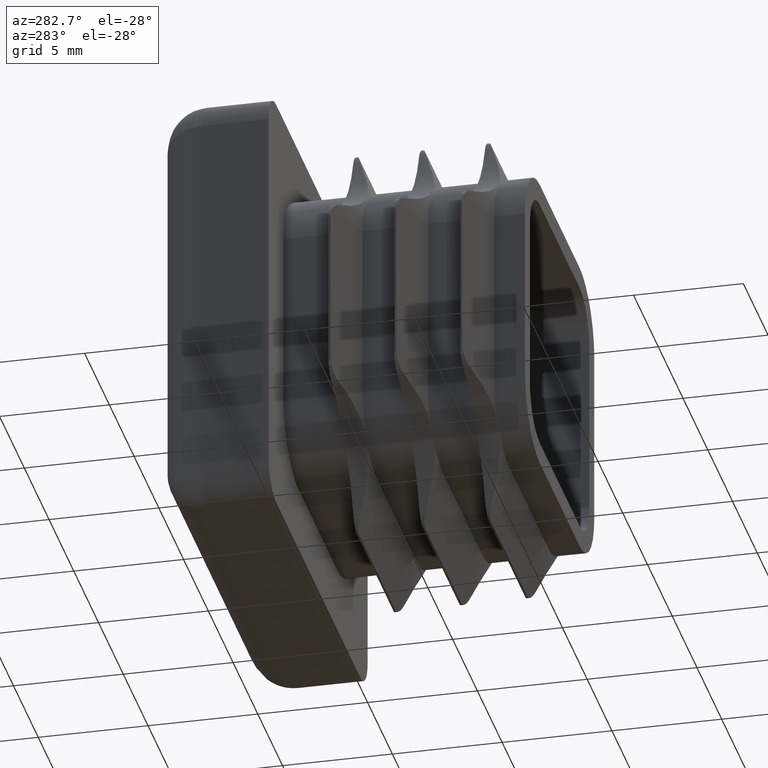
[diagram: clean part render]
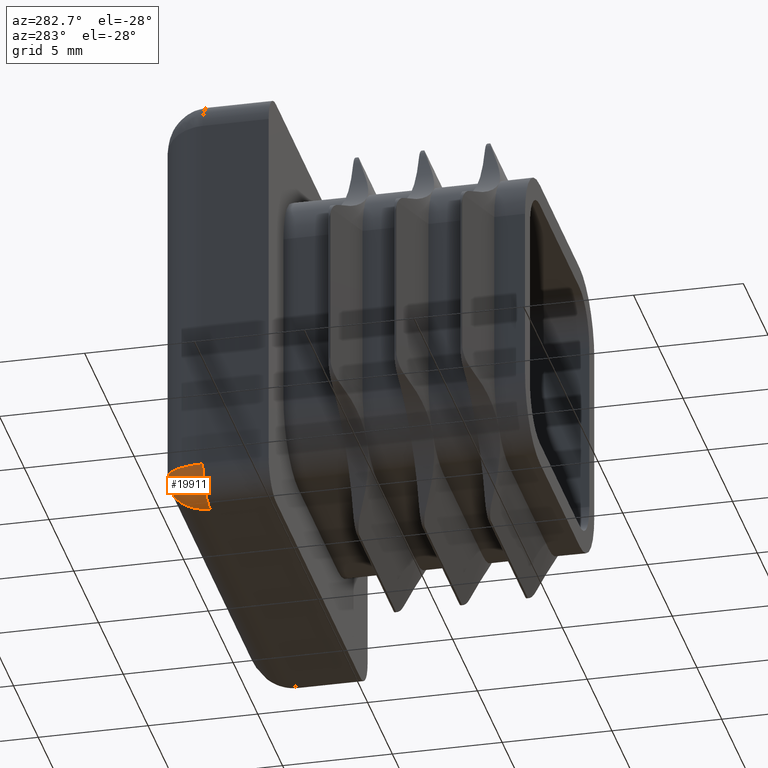
[diagram: same view with one face highlighted and labeled with its STEP entity id]
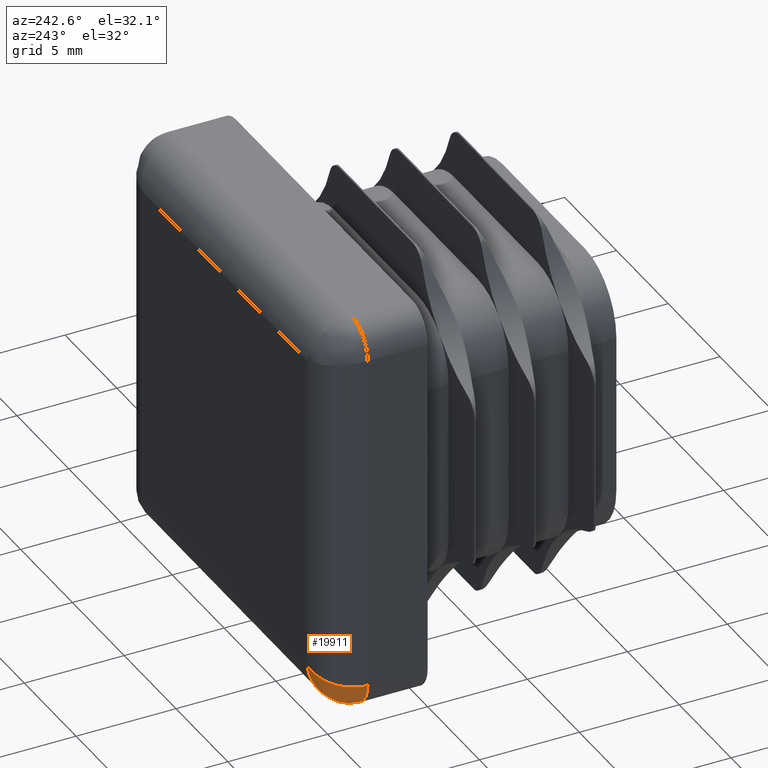
[diagram: same view with one face highlighted and labeled with its STEP entity id]
A machine part, auxiliary view. The second image highlights one B-rep face of the part: STEP entity #19911.
A second angle (auxiliary view) of the same face is appended — the face is thin or edge-on in the first view.
In plain terms, the highlighted face is a freeform B-spline surface patch.
Its self-contained STEP definition (entity closure, byte-faithful):
#66 = CARTESIAN_POINT ( 'NONE',  ( -9.999999999999994671, 3.000000000000000000, -8.499999999999989342 ) ) ;
#131 = CARTESIAN_POINT ( 'NONE',  ( -8.433915790249875144, 4.002301403747636321, -9.735663160999472154 ) ) ;
#367 = EDGE_CURVE ( 'NONE', #3658, #16613, #1541, .T. ) ;
#447 = VERTEX_POINT ( 'NONE', #17873 ) ;
#1358 = ORIENTED_EDGE ( 'NONE', *, *, #367, .F. ) ;
#1421 = CARTESIAN_POINT ( 'NONE',  ( -8.868498082558900819, 4.871239223148167596, -8.868498082558959439 ) ) ;
#1541 =( BOUNDED_CURVE ( )  B_SPLINE_CURVE ( 3, ( #14525, #14594, #4895, #17590 ),
 .UNSPECIFIED., .F., .F. ) 
 B_SPLINE_CURVE_WITH_KNOTS ( ( 4, 4 ),
 ( 0.000000000000000000, 1.570796326794896558 ),
 .UNSPECIFIED. ) 
 CURVE ( )  GEOMETRIC_REPRESENTATION_ITEM ( )  RATIONAL_B_SPLINE_CURVE ( ( 1.000000000000000000, 0.8047378541243649375, 0.8047378541243649375, 1.000000000000000000 ) ) 
 REPRESENTATION_ITEM ( '' )  );
#1686 = CARTESIAN_POINT ( 'NONE',  ( -8.397553822052662653, 4.219979528330772389, -9.590215288210686140 ) ) ;
#2963 = CARTESIAN_POINT ( 'NONE',  ( -7.999999999999994671, 5.000000000000000000, -7.999999999999989342 ) ) ;
#3126 = CARTESIAN_POINT ( 'NONE',  ( -8.499999999934567896, 3.130901116873741064, -9.999999999999989342 ) ) ;
#3658 = VERTEX_POINT ( 'NONE', #6484 ) ;
#3682 = CARTESIAN_POINT ( 'NONE',  ( -8.499999999999994671, 3.000000000000000000, -8.499999999999989342 ) ) ;
#4662 = CARTESIAN_POINT ( 'NONE',  ( -9.007237873748223933, 4.747572812742430592, -8.251809468437050654 ) ) ;
#4785 = CARTESIAN_POINT ( 'NONE',  ( -9.999999999999994671, 3.130901116873741064, -8.499999999934450656 ) ) ;
#4854 = CARTESIAN_POINT ( 'NONE',  ( -9.967381048192295978, 3.454858333943214621, -9.967381048192290649 ) ) ;
#4895 = CARTESIAN_POINT ( 'NONE',  ( -8.292893218813446765, 5.000000000000000888, -9.171572875253799495 ) ) ;
#4917 = CARTESIAN_POINT ( 'NONE',  ( -9.506773582446967907, 4.321653542299215722, -8.376693395611734871 ) ) ;
#5121 = CARTESIAN_POINT ( 'NONE',  ( -8.261846524179178530, 5.000000000000000000, -8.065461631044785307 ) ) ;
#5258 =( BOUNDED_SURFACE ( )  B_SPLINE_SURFACE ( 3, 2, ( 
 ( #66, #12729, #14226 ),
 ( #4785, #7813, #3126 ),
 ( #15801, #4854, #14286 ),
 ( #10988, #7937, #15951 ),
 ( #6497, #15883, #7872 ),
 ( #6424, #20551, #6366 ),
 ( #14347, #17478, #131 ),
 ( #7754, #11185, #1686 ),
 ( #4917, #9323, #20431 ),
 ( #10921, #1421, #14090 ),
 ( #4662, #15686, #6235 ),
 ( #17283, #12918, #16165 ),
 ( #5121, #5458, #6976 ),
 ( #9725, #19296, #11387 ) ),
 .UNSPECIFIED., .F., .F., .T. ) 
 B_SPLINE_SURFACE_WITH_KNOTS ( ( 4, 2, 2, 2, 2, 2, 4 ),
 ( 3, 3 ),
 ( 6.283185307179586232, 6.479534848028948524, 6.675884388878310816, 6.872233929727672219, 7.068583470577034511, 7.461282552275758206, 7.853981633974482790 ),
 ( 0.000000000000000000, 1.000000000000000000 ),
 .UNSPECIFIED. ) 
 GEOMETRIC_REPRESENTATION_ITEM ( )  RATIONAL_B_SPLINE_SURFACE ( (
 ( 1.000000000000000000, 0.7071067811865475727, 1.000000000000000000),
 ( 1.000000000000000000, 0.7070717008705407203, 1.000000000000000000),
 ( 1.000000000000000000, 0.7117460391535117559, 1.000000000000000000),
 ( 1.000000000000000000, 0.7291288573898047076, 1.000000000000000000),
 ( 1.000000000000000000, 0.7418334672881715663, 1.000000000000000000),
 ( 1.000000000000000000, 0.7723967724090315956, 1.000000000000000000),
 ( 1.000000000000000000, 0.7902180514827604751, 1.000000000000000000),
 ( 1.000000000000000000, 0.8275942267605804759, 1.000000000000000000),
 ( 1.000000000000000000, 0.8471316911967896601, 1.000000000000000000),
 ( 1.000000000000000000, 0.9038128289597346932, 1.000000000000000000),
 ( 1.000000000000000000, 0.9386556746367809012, 1.000000000000000000),
 ( 1.000000000000000000, 0.9867291651255316598, 1.000000000000000000),
 ( 1.000000000000000000, 1.000158598892036288, 1.000000000000000000),
 ( 1.000000000000000000, 1.000000000000000000, 1.000000000000000000) ) ) 
 REPRESENTATION_ITEM ( '' )  SURFACE ( )  );
#5458 = CARTESIAN_POINT ( 'NONE',  ( -8.163602867483206182, 4.999999997674065888, -8.163602867483120917 ) ) ;
#6235 = CARTESIAN_POINT ( 'NONE',  ( -8.251809468437055983, 4.747572812742459014, -9.007237873748154655 ) ) ;
#6366 = CARTESIAN_POINT ( 'NONE',  ( -8.449416487498767836, 3.886302342411144028, -9.797665949995039369 ) ) ;
#6424 = CARTESIAN_POINT ( 'NONE',  ( -9.797665949995062462, 3.886302342411101396, -8.449416487498734085 ) ) ;
#6484 = CARTESIAN_POINT ( 'NONE',  ( -8.499999999999996447, 3.000000000000000000, -9.999999999999989342 ) ) ;
#6497 = CARTESIAN_POINT ( 'NONE',  ( -9.897852180050078275, 3.644431387049250848, -8.474463045012536000 ) ) ;
#6847 = CIRCLE ( 'NONE', #7751, 1.499999999999999556 ) ;
#6976 = CARTESIAN_POINT ( 'NONE',  ( -8.065461631044778201, 5.000000000000000000, -8.261846524179123463 ) ) ;
#7751 = AXIS2_PLACEMENT_3D ( 'NONE', #3682, #17929, #11553 ) ;
#7754 = CARTESIAN_POINT ( 'NONE',  ( -9.590215288210691469, 4.219979528330771501, -8.397553822052655548 ) ) ;
#7813 = CARTESIAN_POINT ( 'NONE',  ( -9.999999991084731477, 3.229445146648385556, -9.999999991084640882 ) ) ;
#7872 = CARTESIAN_POINT ( 'NONE',  ( -8.474463045012509355, 3.644431387049206439, -9.897852180050088933 ) ) ;
#7927 = EDGE_LOOP ( 'NONE', ( #1358, #15849, #19557 ) ) ;
#7937 = CARTESIAN_POINT ( 'NONE',  ( -9.849303782782342864, 3.862933231318114835, -9.849303782782339312 ) ) ;
#8817 = CARTESIAN_POINT ( 'NONE',  ( -7.999999999999994671, 5.000000000000000000, -7.999999999999989342 ) ) ;
#8878 = CARTESIAN_POINT ( 'NONE',  ( -9.999999999999992895, 4.171572875253810153, -8.499999999999989342 ) ) ;
#9323 = CARTESIAN_POINT ( 'NONE',  ( -9.163169948761604289, 4.712569180173933781, -9.163169948761565209 ) ) ;
#9725 = CARTESIAN_POINT ( 'NONE',  ( -7.999999999999994671, 5.000000000000000000, -7.999999999999989342 ) ) ;
#10921 = CARTESIAN_POINT ( 'NONE',  ( -9.229093522225340962, 4.599333602520846220, -8.307273380556321030 ) ) ;
#10988 = CARTESIAN_POINT ( 'NONE',  ( -9.936033313772400177, 3.518565054566741068, -8.484008328443078284 ) ) ;
#11185 = CARTESIAN_POINT ( 'NONE',  ( -9.267225952656637844, 4.642399879337960833, -9.267225952656666266 ) ) ;
#11387 = CARTESIAN_POINT ( 'NONE',  ( -7.999999999999994671, 5.000000000000000000, -7.999999999999991118 ) ) ;
#11553 = DIRECTION ( 'NONE',  ( 0.000000000000000000, 0.000000000000000000, -1.000000000000000000 ) ) ;
#12729 = CARTESIAN_POINT ( 'NONE',  ( -9.999999999999994671, 2.999999999999999556, -9.999999999999989342 ) ) ;
#12918 = CARTESIAN_POINT ( 'NONE',  ( -8.331464037326425043, 4.987936888157777915, -8.331464037326499650 ) ) ;
#14090 = CARTESIAN_POINT ( 'NONE',  ( -8.307273380556326359, 4.599333602520809805, -9.229093522225371160 ) ) ;
#14106 =( BOUNDED_CURVE ( )  B_SPLINE_CURVE ( 3, ( #8817, #20131, #8878, #18532 ),
 .UNSPECIFIED., .F., .F. ) 
 B_SPLINE_CURVE_WITH_KNOTS ( ( 4, 4 ),
 ( 4.712388980384689674, 6.283185307179586232 ),
 .UNSPECIFIED. ) 
 CURVE ( )  GEOMETRIC_REPRESENTATION_ITEM ( )  RATIONAL_B_SPLINE_CURVE ( ( 1.000000000000000000, 0.8047378541243649375, 0.8047378541243649375, 1.000000000000000000 ) ) 
 REPRESENTATION_ITEM ( '' )  );
#14226 = CARTESIAN_POINT ( 'NONE',  ( -8.499999999999994671, 3.000000000000000000, -9.999999999999989342 ) ) ;
#14286 = CARTESIAN_POINT ( 'NONE',  ( -8.496776951960136159, 3.261796233497769482, -9.987107807840507334 ) ) ;
#14347 = CARTESIAN_POINT ( 'NONE',  ( -9.735663160999479260, 4.002301403747634545, -8.433915790249868039 ) ) ;
#14525 = CARTESIAN_POINT ( 'NONE',  ( -8.499999999999996447, 3.000000000000000000, -9.999999999999989342 ) ) ;
#14546 = EDGE_CURVE ( 'NONE', #447, #3658, #6847, .T. ) ;
#14594 = CARTESIAN_POINT ( 'NONE',  ( -8.499999999999994671, 4.171572875253810153, -9.999999999999989342 ) ) ;
#15686 = CARTESIAN_POINT ( 'NONE',  ( -8.679281854046200451, 4.924992851440422648, -8.679281854046122291 ) ) ;
#15801 = CARTESIAN_POINT ( 'NONE',  ( -9.987107807840512663, 3.261796233497769926, -8.496776951960130830 ) ) ;
#15849 = ORIENTED_EDGE ( 'NONE', *, *, #14546, .F. ) ;
#15883 = CARTESIAN_POINT ( 'NONE',  ( -9.766763865964884772, 4.041650783308535111, -9.766763865964909641 ) ) ;
#15951 = CARTESIAN_POINT ( 'NONE',  ( -8.484008328443083613, 3.518565054566740624, -9.936033313772394848 ) ) ;
#16165 = CARTESIAN_POINT ( 'NONE',  ( -8.130873963928024750, 4.947945317302687052, -8.523495855712187819 ) ) ;
#16515 = EDGE_CURVE ( 'NONE', #16613, #447, #14106, .T. ) ;
#16613 = VERTEX_POINT ( 'NONE', #2963 ) ;
#17283 = CARTESIAN_POINT ( 'NONE',  ( -8.523495855712125646, 4.947945317302713697, -8.130873963928019421 ) ) ;
#17478 = CARTESIAN_POINT ( 'NONE',  ( -9.475127912448765954, 4.456070975774498955, -9.475127912448730427 ) ) ;
#17590 = CARTESIAN_POINT ( 'NONE',  ( -7.999999999999994671, 5.000000000000000000, -7.999999999999989342 ) ) ;
#17873 = CARTESIAN_POINT ( 'NONE',  ( -9.999999999999994671, 3.000000000000000000, -8.499999999999989342 ) ) ;
#17929 = DIRECTION ( 'NONE',  ( -0.000000000000000000, -1.000000000000000000, 0.000000000000000000 ) ) ;
#18532 = CARTESIAN_POINT ( 'NONE',  ( -9.999999999999994671, 3.000000000000000000, -8.499999999999989342 ) ) ;
#18630 = FACE_OUTER_BOUND ( 'NONE', #7927, .T. ) ;
#19296 = CARTESIAN_POINT ( 'NONE',  ( -7.999999999999994671, 5.000000000000000000, -7.999999999999989342 ) ) ;
#19557 = ORIENTED_EDGE ( 'NONE', *, *, #16515, .F. ) ;
#19911 = ADVANCED_FACE ( 'NONE', ( #18630 ), #5258, .T. ) ;
#20131 = CARTESIAN_POINT ( 'NONE',  ( -9.171572875253804824, 5.000000000000000888, -8.292893218813441436 ) ) ;
#20431 = CARTESIAN_POINT ( 'NONE',  ( -8.376693395611740200, 4.321653542299231709, -9.506773582446948367 ) ) ;
#20551 = CARTESIAN_POINT ( 'NONE',  ( -9.578506115850931479, 4.337851778722861873, -9.578506115850901281 ) ) ;